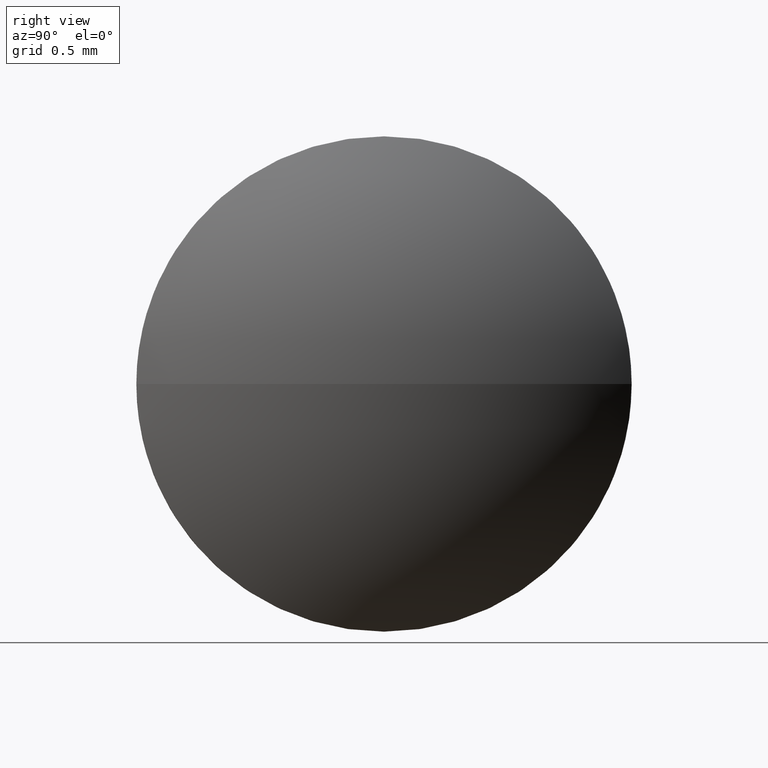
[diagram: clean part render]
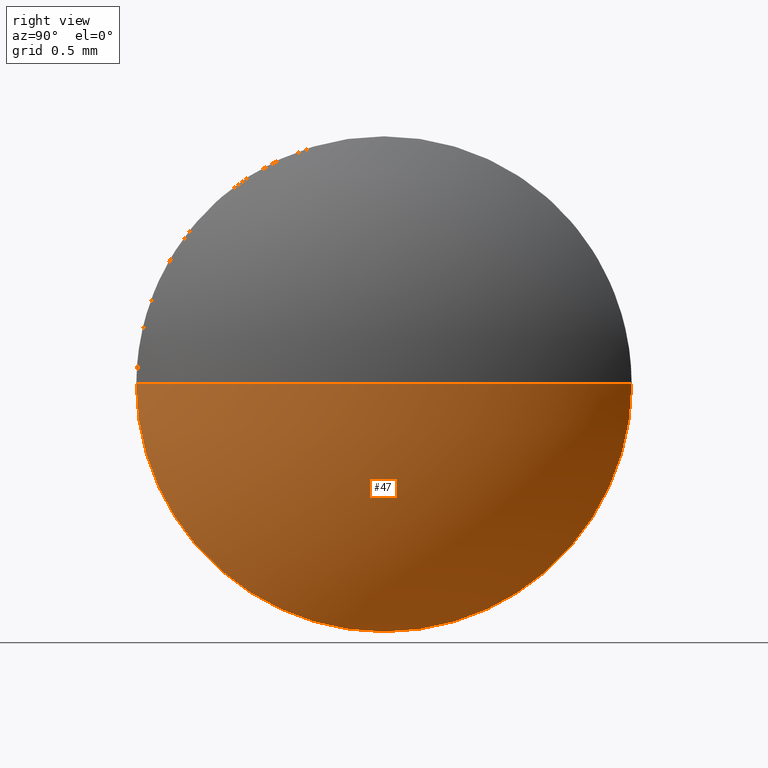
[diagram: same view with one face highlighted and labeled with its STEP entity id]
A machine part, right view. The second image highlights one B-rep face of the part: STEP entity #47.
In plain terms, the highlighted spherical surface has radius 3.2436 mm.
Its self-contained STEP definition (entity closure, byte-faithful):
#4 = AXIS2_PLACEMENT_3D ( 'NONE', #95, #137, #51 ) ;
#7 = CARTESIAN_POINT ( 'NONE',  ( 388.6927272250636600, 19.68539423568211400, 0.0000000000000000000 ) ) ;
#19 = DIRECTION ( 'NONE',  ( 0.0000000000000000000, 0.0000000000000000000, -1.000000000000000000 ) ) ;
#32 = ORIENTED_EDGE ( 'NONE', *, *, #148, .F. ) ;
#35 = ORIENTED_EDGE ( 'NONE', *, *, #64, .F. ) ;
#36 = DIRECTION ( 'NONE',  ( 0.0000000000000000000, 0.0000000000000000000, 1.000000000000000000 ) ) ;
#40 = AXIS2_PLACEMENT_3D ( 'NONE', #61, #19, #76 ) ;
#41 = DIRECTION ( 'NONE',  ( 0.0000000000000000000, 0.0000000000000000000, 1.000000000000000000 ) ) ;
#47 = ADVANCED_FACE ( 'NONE', ( #129 ), #72, .T. ) ;
#51 = DIRECTION ( 'NONE',  ( 0.0000000000000000000, -1.000000000000000000, -1.224646799147353200E-016 ) ) ;
#52 = EDGE_LOOP ( 'NONE', ( #53, #86, #35, #32 ) ) ;
#53 = ORIENTED_EDGE ( 'NONE', *, *, #138, .F. ) ;
#54 = DIRECTION ( 'NONE',  ( -1.000000000000000000, -0.0000000000000000000, -0.0000000000000000000 ) ) ;
#61 = CARTESIAN_POINT ( 'NONE',  ( 386.1391765004260000, 21.68539423568212100, 0.0000000000000000000 ) ) ;
#64 = EDGE_CURVE ( 'NONE', #107, #125, #136, .T. ) ;
#67 = CARTESIAN_POINT ( 'NONE',  ( 386.1391765004260000, 21.68539423568212100, 0.0000000000000000000 ) ) ;
#72 = SPHERICAL_SURFACE ( 'NONE', #170, 3.243550724637656900 ) ;
#76 = DIRECTION ( 'NONE',  ( -1.000000000000000000, 0.0000000000000000000, 0.0000000000000000000 ) ) ;
#86 = ORIENTED_EDGE ( 'NONE', *, *, #122, .T. ) ;
#91 = DIRECTION ( 'NONE',  ( 0.0000000000000000000, 0.0000000000000000000, 1.000000000000000000 ) ) ;
#95 = CARTESIAN_POINT ( 'NONE',  ( 386.1391765004260000, 21.68539423568212100, 0.0000000000000000000 ) ) ;
#96 = CARTESIAN_POINT ( 'NONE',  ( 388.6927272250636600, 21.68539423568211400, 0.0000000000000000000 ) ) ;
#107 = VERTEX_POINT ( 'NONE', #165 ) ;
#113 = CIRCLE ( 'NONE', #40, 3.243550724637667100 ) ;
#117 = CIRCLE ( 'NONE', #4, 3.243550724637656900 ) ;
#122 = EDGE_CURVE ( 'NONE', #151, #125, #113, .T. ) ;
#125 = VERTEX_POINT ( 'NONE', #7 ) ;
#129 = FACE_OUTER_BOUND ( 'NONE', #52, .T. ) ;
#136 = CIRCLE ( 'NONE', #178, 1.999999999999998200 ) ;
#137 = DIRECTION ( 'NONE',  ( 0.0000000000000000000, -1.224646799147353200E-016, 1.000000000000000000 ) ) ;
#138 = EDGE_CURVE ( 'NONE', #151, #144, #117, .T. ) ;
#140 = DIRECTION ( 'NONE',  ( 0.0000000000000000000, -1.000000000000000000, 0.0000000000000000000 ) ) ;
#144 = VERTEX_POINT ( 'NONE', #146 ) ;
#146 = CARTESIAN_POINT ( 'NONE',  ( 388.6927272250636600, 23.68539423568211800, 2.449293598294706900E-016 ) ) ;
#148 = EDGE_CURVE ( 'NONE', #144, #107, #184, .T. ) ;
#150 = CARTESIAN_POINT ( 'NONE',  ( 389.3827272250636600, 21.68539423568212100, 0.0000000000000000000 ) ) ;
#151 = VERTEX_POINT ( 'NONE', #150 ) ;
#153 = DIRECTION ( 'NONE',  ( -1.000000000000000000, -0.0000000000000000000, -0.0000000000000000000 ) ) ;
#157 = CARTESIAN_POINT ( 'NONE',  ( 388.6927272250636600, 21.68539423568211400, 0.0000000000000000000 ) ) ;
#165 = CARTESIAN_POINT ( 'NONE',  ( 388.6927272250636600, 21.68539423568211400, -1.999999999999998200 ) ) ;
#170 = AXIS2_PLACEMENT_3D ( 'NONE', #67, #41, #140 ) ;
#175 = AXIS2_PLACEMENT_3D ( 'NONE', #96, #153, #36 ) ;
#178 = AXIS2_PLACEMENT_3D ( 'NONE', #157, #54, #91 ) ;
#184 = CIRCLE ( 'NONE', #175, 1.999999999999998200 ) ;